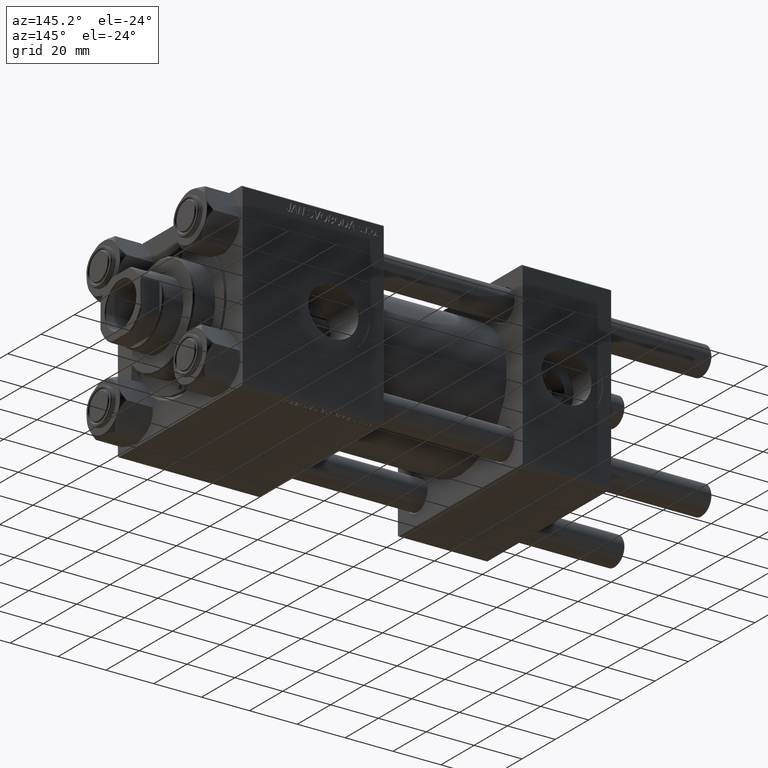
[diagram: clean part render]
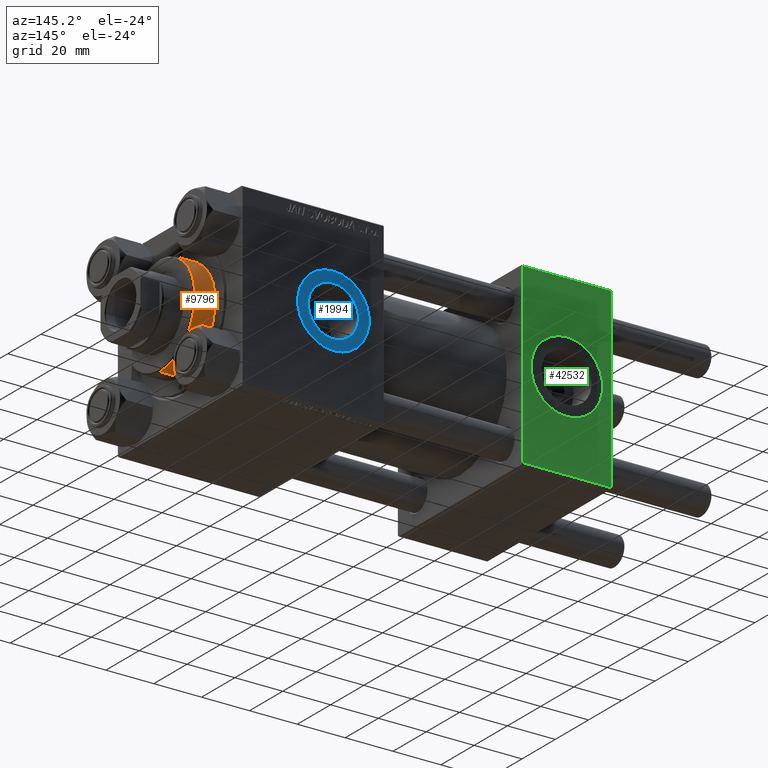
[diagram: same view with three faces highlighted in distinct colors, each labeled with its STEP entity id]
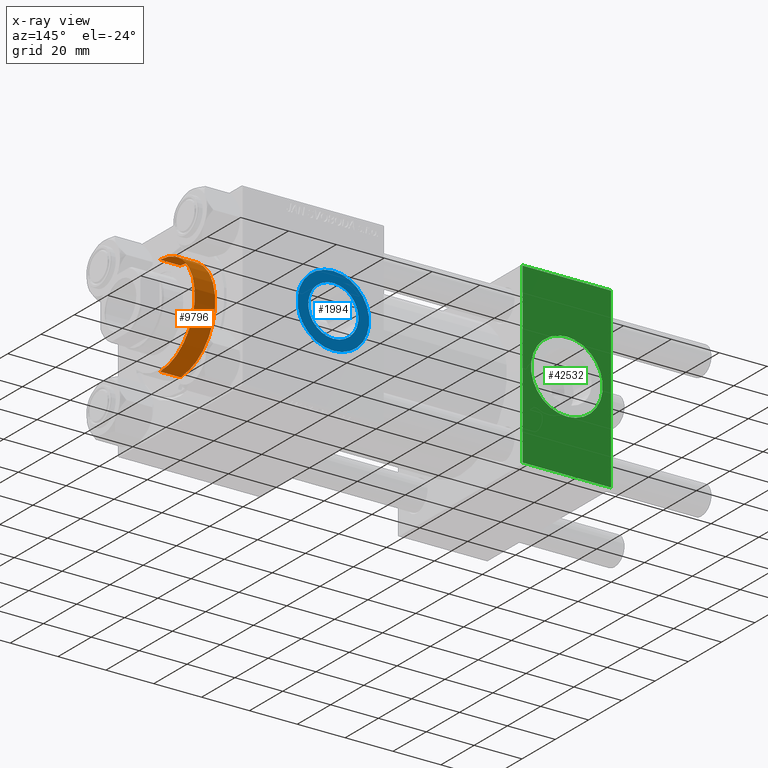
[diagram: x-ray of the same camera — body ghosted, the three highlighted faces saturated]
A machine part, auxiliary view with three faces highlighted in distinct colors.
The next image is the same camera in x-ray (body ghosted, the three faces saturated) — at least one of them is partly hidden behind the body in this view.
Their STEP definitions:

[orange] entity #9796 — the highlighted cylindrical surface (partial cylindrical patch) has radius 21 mm, axis along (-1, -0, 0).
#1564 = DIRECTION ( 'NONE',  ( 0.000000000000000000, 0.000000000000000000, 1.000000000000000000 ) ) ;
#2708 = ORIENTED_EDGE ( 'NONE', *, *, #36663, .T. ) ;
#4601 = CARTESIAN_POINT ( 'NONE',  ( -21.00000000000000000, 0.000000000000000000, 37.19999999999999574 ) ) ;
#4766 = CIRCLE ( 'NONE', #11456, 21.00000000000000000 ) ;
#8554 = CARTESIAN_POINT ( 'NONE',  ( -21.00000000000000000, 0.000000000000000000, 37.69999999999999574 ) ) ;
#9796 = ADVANCED_FACE ( 'NONE', ( #17478 ), #49406, .T. ) ;
#11456 = AXIS2_PLACEMENT_3D ( 'NONE', #47252, #47508, #27371 ) ;
#11869 = CARTESIAN_POINT ( 'NONE',  ( 21.00000000000000000, 2.571758278209441661E-15, 37.69999999999999574 ) ) ;
#12320 = EDGE_CURVE ( 'NONE', #17788, #24567, #28343, .T. ) ;
#13564 = CARTESIAN_POINT ( 'NONE',  ( 0.000000000000000000, 0.000000000000000000, 37.69999999999999574 ) ) ;
#13851 = DIRECTION ( 'NONE',  ( 1.000000000000000000, 0.000000000000000000, 0.000000000000000000 ) ) ;
#14600 = AXIS2_PLACEMENT_3D ( 'NONE', #13564, #33454, #25063 ) ;
#16327 = EDGE_CURVE ( 'NONE', #31989, #17788, #4766, .T. ) ;
#17478 = FACE_OUTER_BOUND ( 'NONE', #42783, .T. ) ;
#17788 = VERTEX_POINT ( 'NONE', #51346 ) ;
#20053 = DIRECTION ( 'NONE',  ( -0.000000000000000000, -0.000000000000000000, -1.000000000000000000 ) ) ;
#24567 = VERTEX_POINT ( 'NONE', #34012 ) ;
#24694 = VECTOR ( 'NONE', #51624, 1000.000000000000000 ) ;
#25063 = DIRECTION ( 'NONE',  ( -1.000000000000000000, 0.000000000000000000, 0.000000000000000000 ) ) ;
#27371 = DIRECTION ( 'NONE',  ( 1.000000000000000000, 0.000000000000000000, 0.000000000000000000 ) ) ;
#28343 = LINE ( 'NONE', #11869, #24694 ) ;
#31989 = VERTEX_POINT ( 'NONE', #4601 ) ;
#32407 = VECTOR ( 'NONE', #20053, 1000.000000000000000 ) ;
#32617 = LINE ( 'NONE', #8554, #32407 ) ;
#33454 = DIRECTION ( 'NONE',  ( -0.000000000000000000, -0.000000000000000000, -1.000000000000000000 ) ) ;
#34012 = CARTESIAN_POINT ( 'NONE',  ( 21.00000000000000000, 2.571758278209441661E-15, 28.69999999999999929 ) ) ;
#34407 = ORIENTED_EDGE ( 'NONE', *, *, #42181, .F. ) ;
#36261 = ORIENTED_EDGE ( 'NONE', *, *, #12320, .T. ) ;
#36663 = EDGE_CURVE ( 'NONE', #24567, #48138, #48085, .T. ) ;
#40914 = ORIENTED_EDGE ( 'NONE', *, *, #16327, .T. ) ;
#42181 = EDGE_CURVE ( 'NONE', #31989, #48138, #32617, .T. ) ;
#42783 = EDGE_LOOP ( 'NONE', ( #40914, #36261, #2708, #34407 ) ) ;
#43666 = CARTESIAN_POINT ( 'NONE',  ( -21.00000000000000000, 0.000000000000000000, 28.69999999999999929 ) ) ;
#45276 = CARTESIAN_POINT ( 'NONE',  ( 0.000000000000000000, 0.000000000000000000, 28.69999999999999929 ) ) ;
#47252 = CARTESIAN_POINT ( 'NONE',  ( 0.000000000000000000, 0.000000000000000000, 37.19999999999999574 ) ) ;
#47508 = DIRECTION ( 'NONE',  ( 0.000000000000000000, 0.000000000000000000, -1.000000000000000000 ) ) ;
#48085 = CIRCLE ( 'NONE', #51404, 21.00000000000000000 ) ;
#48138 = VERTEX_POINT ( 'NONE', #43666 ) ;
#49406 = CYLINDRICAL_SURFACE ( 'NONE', #14600, 21.00000000000000000 ) ;
#51346 = CARTESIAN_POINT ( 'NONE',  ( 21.00000000000000000, 2.571758278209441661E-15, 37.19999999999999574 ) ) ;
#51404 = AXIS2_PLACEMENT_3D ( 'NONE', #45276, #1564, #13851 ) ;
#51624 = DIRECTION ( 'NONE',  ( -0.000000000000000000, -0.000000000000000000, -1.000000000000000000 ) ) ;

[blue] entity #1994 — the highlighted planar face has unit normal (0, 1, 0).
#1031 = CIRCLE ( 'NONE', #48644, 10.47999999999998622 ) ;
#1525 = VERTEX_POINT ( 'NONE', #18690 ) ;
#1994 = ADVANCED_FACE ( 'NONE', ( #21931, #46512 ), #34235, .T. ) ;
#3210 = VERTEX_POINT ( 'NONE', #22751 ) ;
#4243 = CIRCLE ( 'NONE', #15936, 15.00000000000002487 ) ;
#6743 = AXIS2_PLACEMENT_3D ( 'NONE', #31668, #35352, #26982 ) ;
#7062 = CARTESIAN_POINT ( 'NONE',  ( 115.9600000000000080, 37.29999999999999716, 10.47999999999998622 ) ) ;
#7639 = ORIENTED_EDGE ( 'NONE', *, *, #30630, .F. ) ;
#8370 = ORIENTED_EDGE ( 'NONE', *, *, #49053, .T. ) ;
#9311 = CARTESIAN_POINT ( 'NONE',  ( 115.9600000000000080, 37.29999999999999716, 0.000000000000000000 ) ) ;
#9347 = AXIS2_PLACEMENT_3D ( 'NONE', #45746, #42104, #10179 ) ;
#9693 = EDGE_LOOP ( 'NONE', ( #30717, #8370 ) ) ;
#10165 = CARTESIAN_POINT ( 'NONE',  ( 115.9600000000000080, 37.29999999999999716, 0.000000000000000000 ) ) ;
#10179 = DIRECTION ( 'NONE',  ( 0.000000000000000000, -0.000000000000000000, 1.000000000000000000 ) ) ;
#12508 = DIRECTION ( 'NONE',  ( 0.000000000000000000, 1.000000000000000000, 0.000000000000000000 ) ) ;
#15382 = CARTESIAN_POINT ( 'NONE',  ( 115.9600000000000080, 37.29999999999999716, 0.000000000000000000 ) ) ;
#15936 = AXIS2_PLACEMENT_3D ( 'NONE', #9311, #21324, #32855 ) ;
#18690 = CARTESIAN_POINT ( 'NONE',  ( 115.9600000000000080, 37.29999999999999716, 15.00000000000002487 ) ) ;
#20648 = EDGE_CURVE ( 'NONE', #3210, #42521, #40076, .T. ) ;
#21324 = DIRECTION ( 'NONE',  ( 0.000000000000000000, 1.000000000000000000, 0.000000000000000000 ) ) ;
#21690 = AXIS2_PLACEMENT_3D ( 'NONE', #10165, #26361, #42094 ) ;
#21931 = FACE_BOUND ( 'NONE', #32175, .T. ) ;
#22751 = CARTESIAN_POINT ( 'NONE',  ( 115.9600000000000080, 37.29999999999999716, -10.47999999999998622 ) ) ;
#26361 = DIRECTION ( 'NONE',  ( 0.000000000000000000, 1.000000000000000000, 0.000000000000000000 ) ) ;
#26805 = VERTEX_POINT ( 'NONE', #30345 ) ;
#26982 = DIRECTION ( 'NONE',  ( 0.000000000000000000, 0.000000000000000000, 1.000000000000000000 ) ) ;
#27390 = EDGE_CURVE ( 'NONE', #1525, #26805, #4243, .T. ) ;
#30345 = CARTESIAN_POINT ( 'NONE',  ( 115.9600000000000080, 37.29999999999999716, -15.00000000000002487 ) ) ;
#30630 = EDGE_CURVE ( 'NONE', #42521, #3210, #1031, .T. ) ;
#30717 = ORIENTED_EDGE ( 'NONE', *, *, #27390, .T. ) ;
#31668 = CARTESIAN_POINT ( 'NONE',  ( 115.9600000000000080, 37.29999999999999716, 0.000000000000000000 ) ) ;
#32175 = EDGE_LOOP ( 'NONE', ( #7639, #40723 ) ) ;
#32855 = DIRECTION ( 'NONE',  ( 0.000000000000000000, 0.000000000000000000, 1.000000000000000000 ) ) ;
#33459 = CIRCLE ( 'NONE', #6743, 15.00000000000002487 ) ;
#34235 = PLANE ( 'NONE',  #9347 ) ;
#35352 = DIRECTION ( 'NONE',  ( 0.000000000000000000, 1.000000000000000000, 0.000000000000000000 ) ) ;
#40076 = CIRCLE ( 'NONE', #21690, 10.47999999999998622 ) ;
#40723 = ORIENTED_EDGE ( 'NONE', *, *, #20648, .F. ) ;
#42094 = DIRECTION ( 'NONE',  ( 0.000000000000000000, 0.000000000000000000, 1.000000000000000000 ) ) ;
#42104 = DIRECTION ( 'NONE',  ( 0.000000000000000000, 1.000000000000000000, 0.000000000000000000 ) ) ;
#42521 = VERTEX_POINT ( 'NONE', #7062 ) ;
#45746 = CARTESIAN_POINT ( 'NONE',  ( 115.9600000000000080, 37.29999999999999716, 0.000000000000000000 ) ) ;
#46512 = FACE_OUTER_BOUND ( 'NONE', #9693, .T. ) ;
#48607 = DIRECTION ( 'NONE',  ( 0.000000000000000000, 0.000000000000000000, 1.000000000000000000 ) ) ;
#48644 = AXIS2_PLACEMENT_3D ( 'NONE', #15382, #12508, #48607 ) ;
#49053 = EDGE_CURVE ( 'NONE', #26805, #1525, #33459, .T. ) ;

[green] entity #42532 — the highlighted planar face has unit normal (0, 1, 0).
#1197 = VERTEX_POINT ( 'NONE', #45998 ) ;
#2234 = VERTEX_POINT ( 'NONE', #45689 ) ;
#3636 = EDGE_CURVE ( 'NONE', #21448, #1197, #28379, .T. ) ;
#3828 = CIRCLE ( 'NONE', #10540, 15.00000000000000178 ) ;
#4790 = DIRECTION ( 'NONE',  ( 1.000000000000000000, 0.000000000000000000, 0.000000000000000000 ) ) ;
#5622 = VECTOR ( 'NONE', #4790, 1000.000000000000000 ) ;
#6324 = ORIENTED_EDGE ( 'NONE', *, *, #40345, .T. ) ;
#8714 = ORIENTED_EDGE ( 'NONE', *, *, #16921, .F. ) ;
#8722 = CARTESIAN_POINT ( 'NONE',  ( 37.00000000000000000, 37.49999999999999289, 37.00000000000000000 ) ) ;
#8851 = DIRECTION ( 'NONE',  ( 0.000000000000000000, 0.000000000000000000, 1.000000000000000000 ) ) ;
#10540 = AXIS2_PLACEMENT_3D ( 'NONE', #37796, #34114, #50060 ) ;
#11009 = FACE_BOUND ( 'NONE', #36585, .T. ) ;
#12260 = DIRECTION ( 'NONE',  ( -1.000000000000000000, 0.000000000000000000, 0.000000000000000000 ) ) ;
#12918 = DIRECTION ( 'NONE',  ( 0.000000000000000000, 0.000000000000000000, -1.000000000000000000 ) ) ;
#13027 = CARTESIAN_POINT ( 'NONE',  ( 18.50000000000000000, 37.49999999999999289, 0.000000000000000000 ) ) ;
#14668 = DIRECTION ( 'NONE',  ( -0.000000000000000000, 1.000000000000000000, 0.000000000000000000 ) ) ;
#15768 = CARTESIAN_POINT ( 'NONE',  ( 37.00000000000000000, 37.49999999999999289, 37.50000000000000000 ) ) ;
#16921 = EDGE_CURVE ( 'NONE', #31331, #2234, #39093, .T. ) ;
#17027 = EDGE_CURVE ( 'NONE', #29387, #1197, #17467, .T. ) ;
#17079 = CARTESIAN_POINT ( 'NONE',  ( 37.00000000000000000, 37.49999999999999289, 37.00000000000000000 ) ) ;
#17275 = ORIENTED_EDGE ( 'NONE', *, *, #17027, .T. ) ;
#17467 = LINE ( 'NONE', #48095, #19024 ) ;
#17539 = VERTEX_POINT ( 'NONE', #8722 ) ;
#18356 = VECTOR ( 'NONE', #23345, 1000.000000000000000 ) ;
#19024 = VECTOR ( 'NONE', #12260, 1000.000000000000000 ) ;
#19679 = LINE ( 'NONE', #15768, #18356 ) ;
#21448 = VERTEX_POINT ( 'NONE', #30668 ) ;
#23271 = DIRECTION ( 'NONE',  ( 0.000000000000000000, -0.000000000000000000, 1.000000000000000000 ) ) ;
#23345 = DIRECTION ( 'NONE',  ( 0.000000000000000000, 0.000000000000000000, -1.000000000000000000 ) ) ;
#28379 = LINE ( 'NONE', #48765, #39359 ) ;
#29060 = AXIS2_PLACEMENT_3D ( 'NONE', #13027, #44707, #8851 ) ;
#29387 = VERTEX_POINT ( 'NONE', #35520 ) ;
#30668 = CARTESIAN_POINT ( 'NONE',  ( 0.000000000000000000, 37.49999999999999289, 37.00000000000000000 ) ) ;
#31331 = VERTEX_POINT ( 'NONE', #39606 ) ;
#32212 = ORIENTED_EDGE ( 'NONE', *, *, #46413, .T. ) ;
#34114 = DIRECTION ( 'NONE',  ( 0.000000000000000000, 1.000000000000000000, 0.000000000000000000 ) ) ;
#34388 = EDGE_CURVE ( 'NONE', #2234, #31331, #3828, .T. ) ;
#35520 = CARTESIAN_POINT ( 'NONE',  ( 37.00000000000000000, 37.49999999999999289, -36.99999999999998579 ) ) ;
#36585 = EDGE_LOOP ( 'NONE', ( #8714, #36905 ) ) ;
#36905 = ORIENTED_EDGE ( 'NONE', *, *, #34388, .F. ) ;
#37796 = CARTESIAN_POINT ( 'NONE',  ( 18.50000000000000000, 37.49999999999999289, 0.000000000000000000 ) ) ;
#39093 = CIRCLE ( 'NONE', #29060, 15.00000000000000178 ) ;
#39359 = VECTOR ( 'NONE', #12918, 1000.000000000000000 ) ;
#39606 = CARTESIAN_POINT ( 'NONE',  ( 18.50000000000000000, 37.49999999999999289, 15.00000000000000178 ) ) ;
#40345 = EDGE_CURVE ( 'NONE', #21448, #17539, #43559, .T. ) ;
#42532 = ADVANCED_FACE ( 'NONE', ( #11009, #42679 ), #51018, .T. ) ;
#42679 = FACE_OUTER_BOUND ( 'NONE', #46218, .T. ) ;
#43559 = LINE ( 'NONE', #17079, #5622 ) ;
#44707 = DIRECTION ( 'NONE',  ( 0.000000000000000000, 1.000000000000000000, 0.000000000000000000 ) ) ;
#45608 = ORIENTED_EDGE ( 'NONE', *, *, #3636, .F. ) ;
#45689 = CARTESIAN_POINT ( 'NONE',  ( 18.50000000000000355, 37.49999999999999289, -15.00000000000000178 ) ) ;
#45998 = CARTESIAN_POINT ( 'NONE',  ( 0.000000000000000000, 37.49999999999999289, -36.99999999999998579 ) ) ;
#46218 = EDGE_LOOP ( 'NONE', ( #32212, #17275, #45608, #6324 ) ) ;
#46413 = EDGE_CURVE ( 'NONE', #17539, #29387, #19679, .T. ) ;
#46635 = AXIS2_PLACEMENT_3D ( 'NONE', #50511, #14668, #23271 ) ;
#48095 = CARTESIAN_POINT ( 'NONE',  ( 37.00000000000000000, 37.49999999999999289, -36.99999999999998579 ) ) ;
#48765 = CARTESIAN_POINT ( 'NONE',  ( 0.000000000000000000, 37.49999999999999289, 37.50000000000000000 ) ) ;
#50060 = DIRECTION ( 'NONE',  ( 0.000000000000000000, 0.000000000000000000, 1.000000000000000000 ) ) ;
#50511 = CARTESIAN_POINT ( 'NONE',  ( 37.00000000000000000, 37.49999999999999289, 37.50000000000000000 ) ) ;
#51018 = PLANE ( 'NONE',  #46635 ) ;